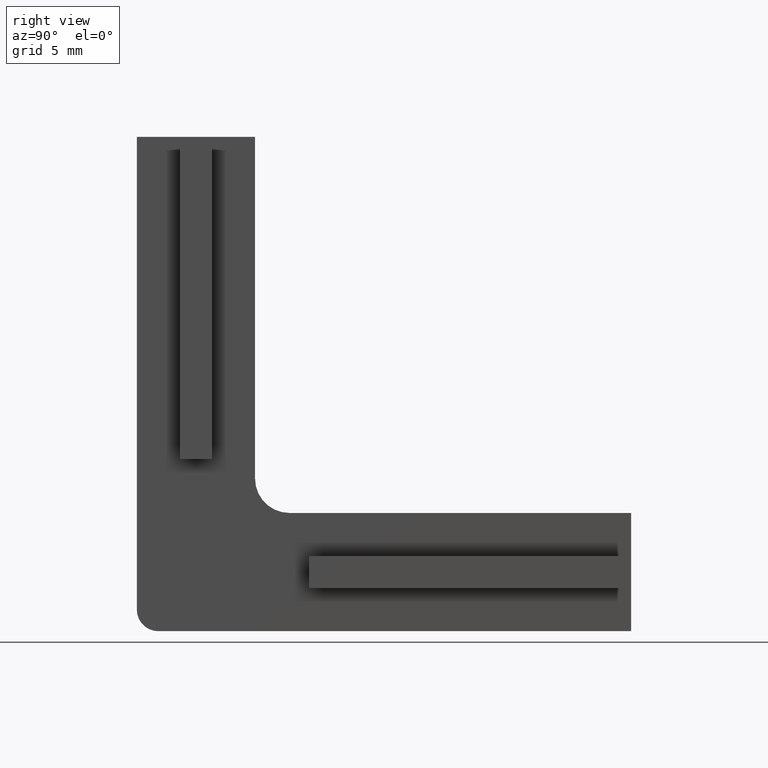
[diagram: clean part render]
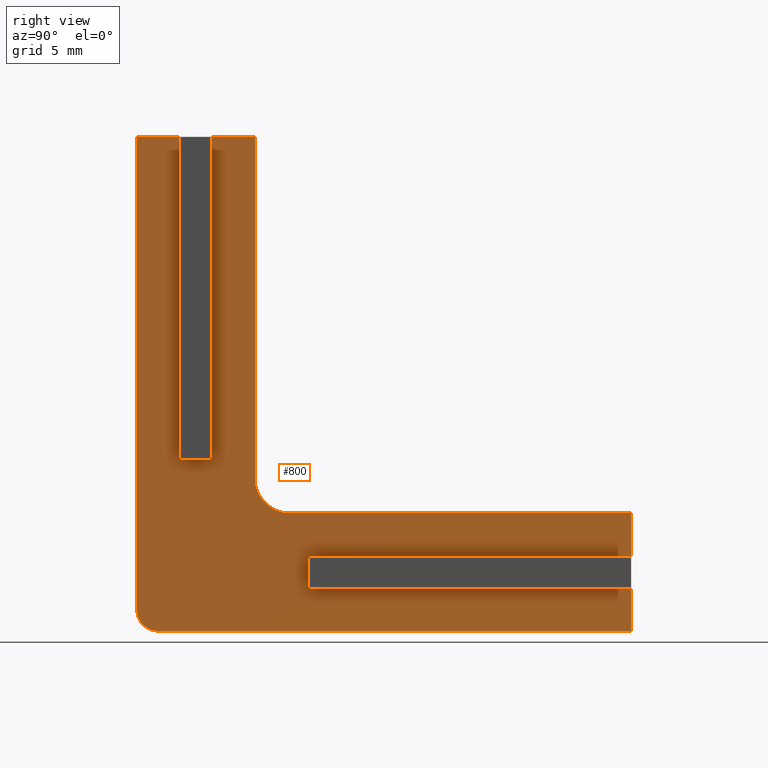
[diagram: same view with one face highlighted and labeled with its STEP entity id]
A machine part, right view. The second image highlights one B-rep face of the part: STEP entity #800.
In plain terms, the highlighted planar face has unit normal (-1, 0, 0).
Its self-contained STEP definition (entity closure, byte-faithful):
#60=LINE('',#1190,#140);
#64=LINE('',#1201,#144);
#78=LINE('',#1234,#158);
#80=LINE('',#1239,#160);
#81=LINE('',#1241,#161);
#82=LINE('',#1243,#162);
#83=LINE('',#1245,#163);
#84=LINE('',#1247,#164);
#85=LINE('',#1249,#165);
#86=LINE('',#1252,#166);
#87=LINE('',#1254,#167);
#88=LINE('',#1256,#168);
#89=LINE('',#1258,#169);
#90=LINE('',#1260,#170);
#140=VECTOR('',#956,1000.);
#144=VECTOR('',#964,1000.);
#158=VECTOR('',#988,1000.);
#160=VECTOR('',#994,1000.);
#161=VECTOR('',#995,1000.);
#162=VECTOR('',#996,1000.);
#163=VECTOR('',#997,1000.);
#164=VECTOR('',#998,1000.);
#165=VECTOR('',#999,1000.);
#166=VECTOR('',#1002,1000.);
#167=VECTOR('',#1003,1000.);
#168=VECTOR('',#1004,1000.);
#169=VECTOR('',#1005,1000.);
#170=VECTOR('',#1006,1000.);
#248=ORIENTED_EDGE('',*,*,#459,.T.);
#249=ORIENTED_EDGE('',*,*,#461,.T.);
#250=ORIENTED_EDGE('',*,*,#437,.T.);
#251=ORIENTED_EDGE('',*,*,#462,.F.);
#252=ORIENTED_EDGE('',*,*,#463,.T.);
#253=ORIENTED_EDGE('',*,*,#464,.F.);
#254=ORIENTED_EDGE('',*,*,#465,.T.);
#255=ORIENTED_EDGE('',*,*,#466,.F.);
#256=ORIENTED_EDGE('',*,*,#467,.T.);
#257=ORIENTED_EDGE('',*,*,#468,.F.);
#258=ORIENTED_EDGE('',*,*,#442,.F.);
#259=ORIENTED_EDGE('',*,*,#469,.F.);
#260=ORIENTED_EDGE('',*,*,#470,.T.);
#261=ORIENTED_EDGE('',*,*,#471,.F.);
#262=ORIENTED_EDGE('',*,*,#472,.T.);
#263=ORIENTED_EDGE('',*,*,#473,.F.);
#437=EDGE_CURVE('',#542,#545,#60,.T.);
#442=EDGE_CURVE('',#550,#547,#64,.T.);
#459=EDGE_CURVE('',#565,#564,#78,.T.);
#461=EDGE_CURVE('',#564,#542,#618,.T.);
#462=EDGE_CURVE('',#566,#545,#80,.T.);
#463=EDGE_CURVE('',#566,#567,#81,.T.);
#464=EDGE_CURVE('',#568,#567,#82,.T.);
#465=EDGE_CURVE('',#568,#569,#83,.T.);
#466=EDGE_CURVE('',#570,#569,#84,.T.);
#467=EDGE_CURVE('',#570,#571,#85,.T.);
#468=EDGE_CURVE('',#547,#571,#619,.T.);
#469=EDGE_CURVE('',#572,#550,#86,.T.);
#470=EDGE_CURVE('',#572,#573,#87,.T.);
#471=EDGE_CURVE('',#574,#573,#88,.T.);
#472=EDGE_CURVE('',#574,#575,#89,.T.);
#473=EDGE_CURVE('',#565,#575,#90,.T.);
#542=VERTEX_POINT('',#1184);
#545=VERTEX_POINT('',#1189);
#547=VERTEX_POINT('',#1195);
#550=VERTEX_POINT('',#1200);
#564=VERTEX_POINT('',#1233);
#565=VERTEX_POINT('',#1235);
#566=VERTEX_POINT('',#1240);
#567=VERTEX_POINT('',#1242);
#568=VERTEX_POINT('',#1244);
#569=VERTEX_POINT('',#1246);
#570=VERTEX_POINT('',#1248);
#571=VERTEX_POINT('',#1250);
#572=VERTEX_POINT('',#1253);
#573=VERTEX_POINT('',#1255);
#574=VERTEX_POINT('',#1257);
#575=VERTEX_POINT('',#1259);
#618=CIRCLE('',#882,1.);
#619=CIRCLE('',#883,1.6);
#642=EDGE_LOOP('',(#248,#249,#250,#251,#252,#253,#254,#255,#256,#257,#258,
#259,#260,#261,#262,#263));
#706=FACE_BOUND('',#642,.T.);
#767=PLANE('',#881);
#800=ADVANCED_FACE('',(#706),#767,.F.);
#881=AXIS2_PLACEMENT_3D('',#1237,#990,#991);
#882=AXIS2_PLACEMENT_3D('',#1238,#992,#993);
#883=AXIS2_PLACEMENT_3D('',#1251,#1000,#1001);
#956=DIRECTION('',(0.,1.,0.));
#964=DIRECTION('',(0.,0.,-1.));
#988=DIRECTION('',(0.,0.,-1.));
#990=DIRECTION('',(-1.,0.,0.));
#991=DIRECTION('',(0.,0.,1.));
#992=DIRECTION('',(1.,0.,0.));
#993=DIRECTION('',(0.,0.,-1.));
#994=DIRECTION('',(0.,0.,-1.));
#995=DIRECTION('',(0.,-1.,0.));
#996=DIRECTION('',(0.,0.,-1.));
#997=DIRECTION('',(0.,1.,0.));
#998=DIRECTION('',(0.,0.,-1.));
#999=DIRECTION('',(0.,-1.,0.));
#1000=DIRECTION('',(1.,0.,0.));
#1001=DIRECTION('',(0.,0.,-1.));
#1002=DIRECTION('',(0.,1.,0.));
#1003=DIRECTION('',(0.,0.,-1.));
#1004=DIRECTION('',(0.,1.,0.));
#1005=DIRECTION('',(0.,0.,1.));
#1006=DIRECTION('',(0.,1.,0.));
#1184=CARTESIAN_POINT('',(2.95,1.,0.));
#1189=CARTESIAN_POINT('',(2.95,23.,0.));
#1190=CARTESIAN_POINT('',(2.95,0.,0.));
#1195=CARTESIAN_POINT('',(2.95,5.5,7.1));
#1200=CARTESIAN_POINT('',(2.95,5.5,23.));
#1201=CARTESIAN_POINT('',(2.95,5.5,23.));
#1233=CARTESIAN_POINT('',(2.95,0.,1.));
#1234=CARTESIAN_POINT('',(2.95,0.,23.));
#1235=CARTESIAN_POINT('',(2.95,0.,23.));
#1237=CARTESIAN_POINT('',(2.95,0.,23.));
#1238=CARTESIAN_POINT('',(2.95,1.,1.));
#1239=CARTESIAN_POINT('',(2.95,23.,5.5));
#1240=CARTESIAN_POINT('',(2.95,23.,2.));
#1241=CARTESIAN_POINT('',(2.95,0.,2.));
#1242=CARTESIAN_POINT('',(2.95,8.,2.));
#1243=CARTESIAN_POINT('',(2.95,8.,23.));
#1244=CARTESIAN_POINT('',(2.95,8.,3.5));
#1245=CARTESIAN_POINT('',(2.95,0.,3.5));
#1246=CARTESIAN_POINT('',(2.95,23.,3.5));
#1247=CARTESIAN_POINT('',(2.95,23.,5.5));
#1248=CARTESIAN_POINT('',(2.95,23.,5.5));
#1249=CARTESIAN_POINT('',(2.95,23.,5.5));
#1250=CARTESIAN_POINT('',(2.95,7.1,5.5));
#1251=CARTESIAN_POINT('',(2.95,7.1,7.1));
#1252=CARTESIAN_POINT('',(2.95,0.,23.));
#1253=CARTESIAN_POINT('',(2.95,3.5,23.));
#1254=CARTESIAN_POINT('',(2.95,3.5,23.));
#1255=CARTESIAN_POINT('',(2.95,3.5,8.));
#1256=CARTESIAN_POINT('',(2.95,0.,8.));
#1257=CARTESIAN_POINT('',(2.95,2.,8.));
#1258=CARTESIAN_POINT('',(2.95,2.,23.));
#1259=CARTESIAN_POINT('',(2.95,2.,23.));
#1260=CARTESIAN_POINT('',(2.95,0.,23.));